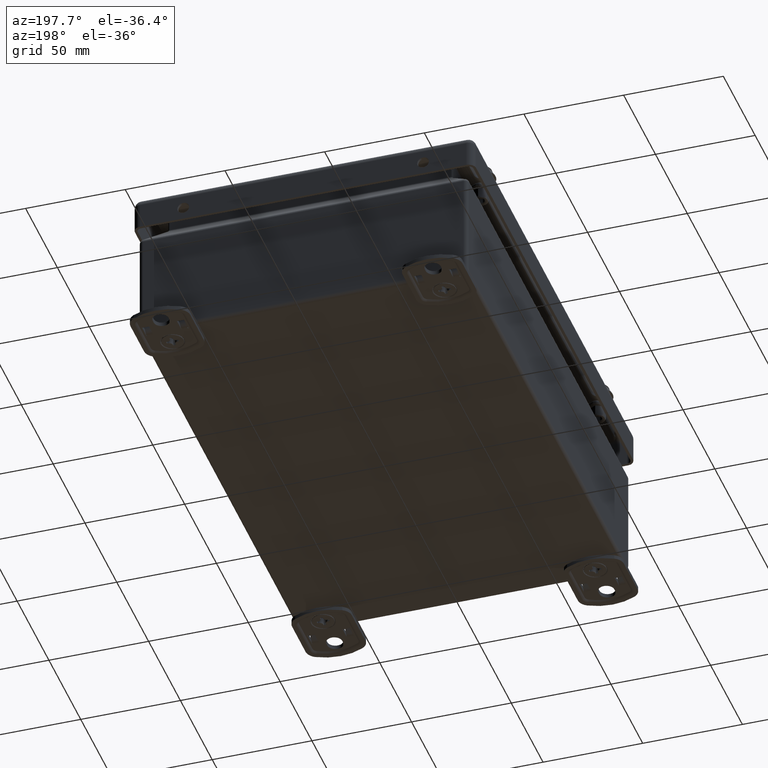
[diagram: clean part render]
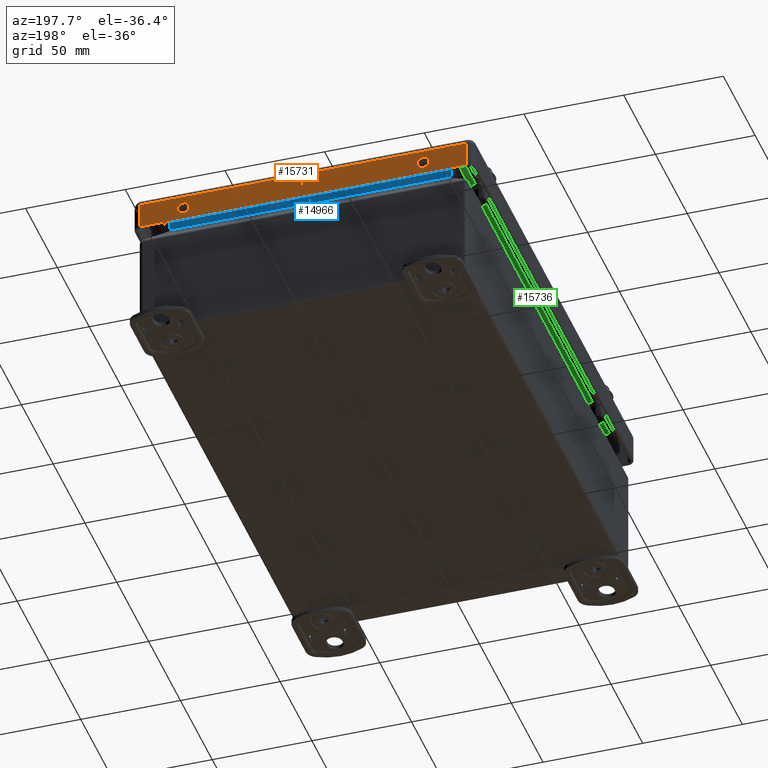
[diagram: same view with three faces highlighted in distinct colors, each labeled with its STEP entity id]
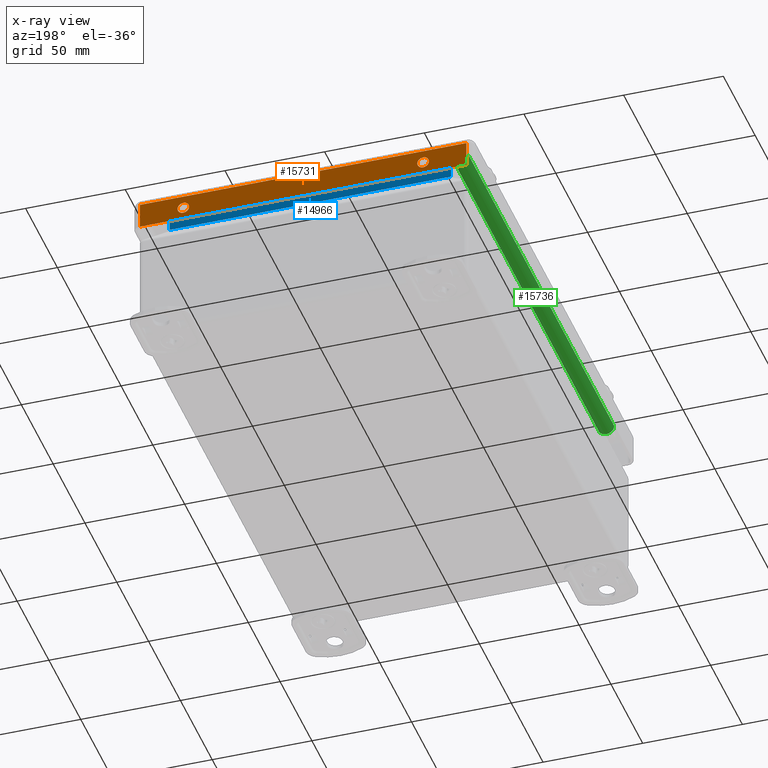
[diagram: x-ray of the same camera — body ghosted, the three highlighted faces saturated]
A machine part, auxiliary view with three faces highlighted in distinct colors.
The next image is the same camera in x-ray (body ghosted, the three faces saturated) — at least one of them is partly hidden behind the body in this view.
Their STEP definitions:

[orange] entity #15731 — the highlighted planar face has unit normal (0, 1, 0).
#444=FACE_BOUND('',#4112,.T.);
#445=FACE_BOUND('',#4113,.T.);
#2079=CIRCLE('',#17823,0.115);
#2083=CIRCLE('',#17829,0.115);
#3089=FACE_OUTER_BOUND('',#4111,.T.);
#4111=EDGE_LOOP('',(#14341,#14342,#14343,#14344));
#4112=EDGE_LOOP('',(#14345));
#4113=EDGE_LOOP('',(#14346));
#5144=LINE('',#32462,#6198);
#5175=LINE('',#32590,#6229);
#5178=LINE('',#32597,#6232);
#5179=LINE('',#32600,#6233);
#6198=VECTOR('',#22519,0.393700787401575);
#6229=VECTOR('',#22668,0.393700787401575);
#6232=VECTOR('',#22677,0.393700787401575);
#6233=VECTOR('',#22682,0.393700787401575);
#7526=VERTEX_POINT('',#32422);
#7530=VERTEX_POINT('',#32434);
#7539=VERTEX_POINT('',#32459);
#7540=VERTEX_POINT('',#32461);
#7577=VERTEX_POINT('',#32588);
#7578=VERTEX_POINT('',#32589);
#9756=EDGE_CURVE('',#7526,#7526,#2079,.T.);
#9762=EDGE_CURVE('',#7530,#7530,#2083,.T.);
#9775=EDGE_CURVE('',#7539,#7540,#5144,.T.);
#9838=EDGE_CURVE('',#7577,#7578,#5175,.T.);
#9843=EDGE_CURVE('',#7578,#7539,#5178,.T.);
#9844=EDGE_CURVE('',#7540,#7577,#5179,.T.);
#14341=ORIENTED_EDGE('',*,*,#9775,.F.);
#14342=ORIENTED_EDGE('',*,*,#9843,.F.);
#14343=ORIENTED_EDGE('',*,*,#9838,.F.);
#14344=ORIENTED_EDGE('',*,*,#9844,.F.);
#14345=ORIENTED_EDGE('',*,*,#9756,.T.);
#14346=ORIENTED_EDGE('',*,*,#9762,.T.);
#14799=PLANE('',#17905);
#15731=ADVANCED_FACE('',(#3089,#444,#445),#14799,.T.);
#17823=AXIS2_PLACEMENT_3D('',#32423,#22476,#22477);
#17829=AXIS2_PLACEMENT_3D('',#32435,#22490,#22491);
#17905=AXIS2_PLACEMENT_3D('',#32601,#22683,#22684);
#22476=DIRECTION('center_axis',(0.,-1.,0.));
#22477=DIRECTION('ref_axis',(-1.,0.,0.));
#22490=DIRECTION('center_axis',(0.,-1.,0.));
#22491=DIRECTION('ref_axis',(-1.,0.,0.));
#22519=DIRECTION('',(-1.,0.,0.));
#22668=DIRECTION('',(1.,-2.17048156365498E-16,0.));
#22677=DIRECTION('',(0.,0.,1.));
#22682=DIRECTION('',(0.,0.,-1.));
#22683=DIRECTION('center_axis',(0.,1.,0.));
#22684=DIRECTION('ref_axis',(-1.,0.,0.));
#32422=CARTESIAN_POINT('',(-2.25311023622047,5.,-0.353));
#32423=CARTESIAN_POINT('Origin',(-2.36811023622047,5.,-0.353));
#32434=CARTESIAN_POINT('',(2.48311023622047,5.,-0.353));
#32435=CARTESIAN_POINT('Origin',(2.36811023622047,5.,-0.353));
#32459=CARTESIAN_POINT('',(3.22211023622047,5.,-0.093));
#32461=CARTESIAN_POINT('',(-3.22211023622047,5.,-0.093));
#32462=CARTESIAN_POINT('',(1.61105511811024,5.,-0.093));
#32588=CARTESIAN_POINT('',(-3.22211023622047,5.,-0.603));
#32589=CARTESIAN_POINT('',(3.22211023622047,5.,-0.603));
#32590=CARTESIAN_POINT('',(3.22211023622047,5.,-0.603));
#32597=CARTESIAN_POINT('',(3.22211023622047,5.,0.));
#32600=CARTESIAN_POINT('',(-3.22211023622047,5.,0.));
#32601=CARTESIAN_POINT('Origin',(3.22211023622047,5.,0.));

[blue] entity #14966 — the highlighted planar face has unit normal (-0, 1, 0).
#586=B_SPLINE_CURVE_WITH_KNOTS('',3,(#24437,#24438,#24439,#24440),
 .UNSPECIFIED.,.F.,.F.,(4,4),(-3.05724026582627,-3.02454690879267),
 .UNSPECIFIED.);
#839=ELLIPSE('',#16343,0.237290960636936,0.137);
#2324=FACE_OUTER_BOUND('',#3296,.T.);
#3296=EDGE_LOOP('',(#10755,#10756,#10757,#10758,#10759,#10760));
#4483=LINE('',#24331,#5537);
#4492=LINE('',#24484,#5546);
#4496=LINE('',#24505,#5550);
#4497=LINE('',#24507,#5551);
#5537=VECTOR('',#18856,0.393700787401575);
#5546=VECTOR('',#18909,0.393700787401575);
#5550=VECTOR('',#18939,0.393700787401575);
#5551=VECTOR('',#18942,0.393700787401575);
#6590=VERTEX_POINT('',#24177);
#6602=VERTEX_POINT('',#24328);
#6603=VERTEX_POINT('',#24330);
#6605=VERTEX_POINT('',#24351);
#6616=VERTEX_POINT('',#24478);
#6617=VERTEX_POINT('',#24482);
#8117=EDGE_CURVE('',#6602,#6603,#4483,.T.);
#8122=EDGE_CURVE('',#6603,#6605,#839,.T.);
#8132=EDGE_CURVE('',#6590,#6602,#586,.T.);
#8145=EDGE_CURVE('',#6616,#6617,#4492,.T.);
#8156=EDGE_CURVE('',#6617,#6590,#4496,.T.);
#8157=EDGE_CURVE('',#6605,#6616,#4497,.T.);
#10755=ORIENTED_EDGE('',*,*,#8132,.F.);
#10756=ORIENTED_EDGE('',*,*,#8156,.F.);
#10757=ORIENTED_EDGE('',*,*,#8145,.F.);
#10758=ORIENTED_EDGE('',*,*,#8157,.F.);
#10759=ORIENTED_EDGE('',*,*,#8122,.F.);
#10760=ORIENTED_EDGE('',*,*,#8117,.F.);
#14590=PLANE('',#16375);
#14966=ADVANCED_FACE('',(#2324),#14590,.T.);
#16343=AXIS2_PLACEMENT_3D('',#24355,#18864,#18865);
#16375=AXIS2_PLACEMENT_3D('',#24506,#18940,#18941);
#18856=DIRECTION('',(1.,1.23309080432578E-16,-1.04447246798402E-16));
#18864=DIRECTION('center_axis',(-1.23309080432578E-16,1.,1.23652151387092E-16));
#18865=DIRECTION('ref_axis',(-0.707106781186548,-1.74627961709872E-16,0.707106781186548));
#18909=DIRECTION('',(-1.,-1.23309080432578E-16,-6.66133814775094E-16));
#18939=DIRECTION('',(4.44089209850063E-16,1.23652151387092E-16,-1.));
#18940=DIRECTION('center_axis',(-1.23309080432578E-16,1.,1.23652151387092E-16));
#18941=DIRECTION('ref_axis',(0.,-1.23652151387092E-16,1.));
#18942=DIRECTION('',(2.21448488463399E-33,-1.23652151387092E-16,1.));
#24177=CARTESIAN_POINT('',(-2.7790710545201,4.56007105450874,2.62128419764944));
#24328=CARTESIAN_POINT('',(-2.76619742531708,4.56007105450874,2.62183125729703));
#24330=CARTESIAN_POINT('',(2.76619742531708,4.56007105450874,2.62183125729703));
#24331=CARTESIAN_POINT('',(-5.2712257876381E-18,4.56007105450874,2.62183125729703));
#24351=CARTESIAN_POINT('',(2.7790710545201,4.56007105450875,2.62128419764944));
#24355=CARTESIAN_POINT('Origin',(2.86307105433964,4.56007105450875,2.42808399925191));
#24437=CARTESIAN_POINT('Ctrl Pts',(-2.7790710545201,4.56007105450874,2.62128419764944));
#24438=CARTESIAN_POINT('Ctrl Pts',(-2.77478304818314,4.56007105450874,2.62164153386014));
#24439=CARTESIAN_POINT('Ctrl Pts',(-2.77048789211939,4.56007105450874,2.62183125729703));
#24440=CARTESIAN_POINT('Ctrl Pts',(-2.76619742531708,4.56007105450874,2.62183125729703));
#24478=CARTESIAN_POINT('',(2.7790710545201,4.56007105450875,2.91599999992266));
#24482=CARTESIAN_POINT('',(-2.7790710545201,4.56007105450874,2.91599999992266));
#24484=CARTESIAN_POINT('',(-0.717779067830227,4.56007105450874,2.91599999992266));
#24505=CARTESIAN_POINT('',(-2.7790710545201,4.56007105450874,2.18048245834961));
#24506=CARTESIAN_POINT('Origin',(-6.55643518479423E-17,4.56007105450874,
2.78896230988627));
#24507=CARTESIAN_POINT('',(2.7790710545201,4.56007105450875,2.15948245834961));

[green] entity #15736 — the highlighted cylindrical surface (edge-blend (fillet) strip) has radius 4 mm, axis along (0, -1, -0).
#1235=CYLINDRICAL_SURFACE('',#17911,0.15748031496063);
#2125=CIRCLE('',#17912,0.15748031496063);
#2126=CIRCLE('',#17913,0.15748031496063);
#3094=FACE_OUTER_BOUND('',#4118,.T.);
#4118=EDGE_LOOP('',(#14363,#14364,#14365,#14366));
#5184=LINE('',#32616,#6238);
#5185=LINE('',#32619,#6239);
#6238=VECTOR('',#22703,0.393700787401575);
#6239=VECTOR('',#22706,0.393700787401575);
#7580=VERTEX_POINT('',#32612);
#7581=VERTEX_POINT('',#32613);
#7582=VERTEX_POINT('',#32615);
#7583=VERTEX_POINT('',#32617);
#9849=EDGE_CURVE('',#7580,#7581,#2125,.T.);
#9850=EDGE_CURVE('',#7582,#7580,#5184,.T.);
#9851=EDGE_CURVE('',#7582,#7583,#2126,.T.);
#9852=EDGE_CURVE('',#7581,#7583,#5185,.T.);
#14363=ORIENTED_EDGE('',*,*,#9849,.F.);
#14364=ORIENTED_EDGE('',*,*,#9850,.F.);
#14365=ORIENTED_EDGE('',*,*,#9851,.T.);
#14366=ORIENTED_EDGE('',*,*,#9852,.F.);
#15736=ADVANCED_FACE('',(#3094),#1235,.T.);
#17911=AXIS2_PLACEMENT_3D('',#32611,#22699,#22700);
#17912=AXIS2_PLACEMENT_3D('',#32614,#22701,#22702);
#17913=AXIS2_PLACEMENT_3D('',#32618,#22704,#22705);
#22699=DIRECTION('center_axis',(1.79985867402216E-16,1.,0.));
#22700=DIRECTION('ref_axis',(-0.707106781186548,0.,0.707106781186547));
#22701=DIRECTION('center_axis',(0.,-1.,8.88178419700125E-15));
#22702=DIRECTION('ref_axis',(1.,0.,0.));
#22703=DIRECTION('',(0.,-1.,0.));
#22704=DIRECTION('center_axis',(0.,-1.,0.));
#22705=DIRECTION('ref_axis',(0.,0.,1.));
#22706=DIRECTION('',(1.79985867402216E-16,1.,0.));
#32611=CARTESIAN_POINT('Origin',(-2.95051968503937,-2.4285,0.));
#32612=CARTESIAN_POINT('',(-2.79303937007874,-4.51103937007874,0.));
#32613=CARTESIAN_POINT('',(-3.108,-4.51103937007874,0.));
#32614=CARTESIAN_POINT('Origin',(-2.95051968503937,-4.51103937007874,0.));
#32615=CARTESIAN_POINT('',(-2.79303937007874,4.51103937007874,0.));
#32616=CARTESIAN_POINT('',(-2.79303937007874,-2.27101968503937,0.));
#32617=CARTESIAN_POINT('',(-3.108,4.51103937007874,0.));
#32618=CARTESIAN_POINT('Origin',(-2.95051968503937,4.51103937007874,0.));
#32619=CARTESIAN_POINT('',(-3.108,-4.857,0.));